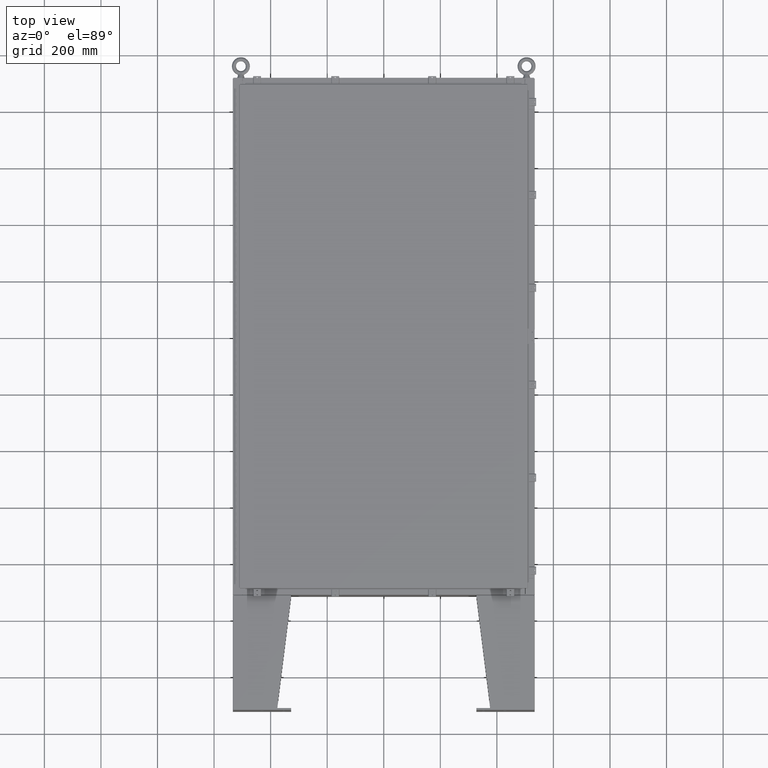
[diagram: clean part render]
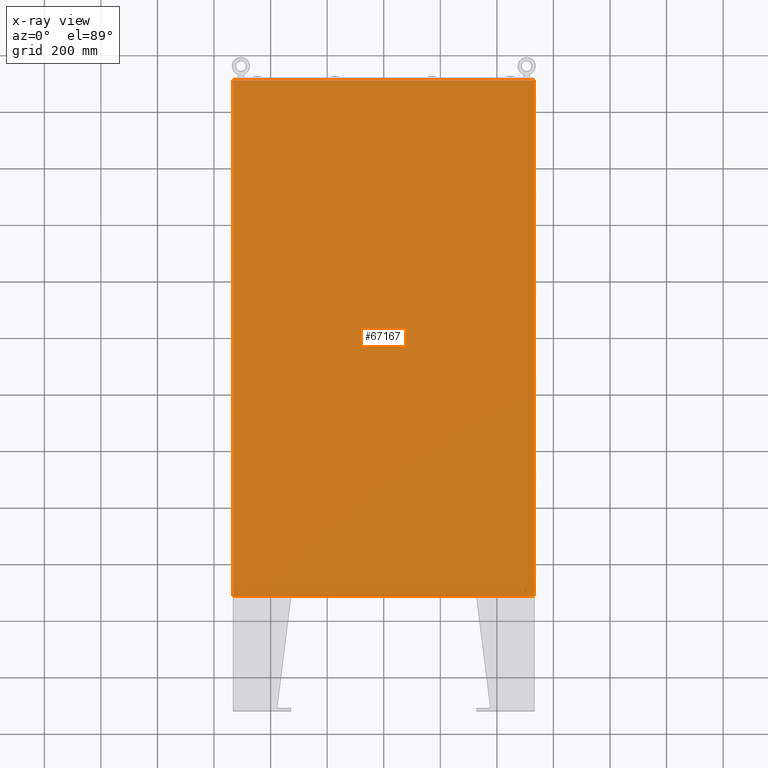
[diagram: x-ray — body ghosted, one internal face saturated and labeled with its STEP entity id]
A machine part, top view, then the same camera in x-ray: the body is ghosted and one INTERNAL B-rep face — a face not visible from any outside direction — is saturated and labeled: STEP entity #67167.
In plain terms, the highlighted planar face has unit normal (0, 0, -1).
Its self-contained STEP definition (entity closure, byte-faithful):
#1101 = CARTESIAN_POINT ( 'NONE',  ( -20.99999999999999600, 35.92530000000000000, 0.0000000000000000000 ) ) ;
#2637 = CARTESIAN_POINT ( 'NONE',  ( -20.91230000000000500, 35.92530000000000000, 4.481938114605432000E-017 ) ) ;
#3471 = EDGE_CURVE ( 'NONE', #21895, #34831, #41214, .T. ) ;
#3842 = ORIENTED_EDGE ( 'NONE', *, *, #48455, .T. ) ;
#11097 = VECTOR ( 'NONE', #16268, 39.37007874015748100 ) ;
#12959 = LINE ( 'NONE', #27878, #11097 ) ;
#15067 = VECTOR ( 'NONE', #49928, 39.37007874015748100 ) ;
#16268 = DIRECTION ( 'NONE',  ( 1.000000000000000000, 0.0000000000000000000, 0.0000000000000000000 ) ) ;
#17662 = CARTESIAN_POINT ( 'NONE',  ( 20.91230000000000900, -35.92529999999999300, 4.481938114605432000E-017 ) ) ;
#19462 = DIRECTION ( 'NONE',  ( -1.000000000000000000, 0.0000000000000000000, -0.0000000000000000000 ) ) ;
#20019 = VECTOR ( 'NONE', #58464, 39.37007874015748100 ) ;
#20577 = CARTESIAN_POINT ( 'NONE',  ( -20.91230000000000500, -35.92530000000000000, 4.481938114605432000E-017 ) ) ;
#21895 = VERTEX_POINT ( 'NONE', #35092 ) ;
#24634 = EDGE_LOOP ( 'NONE', ( #64669, #3842, #59080, #63631 ) ) ;
#27878 = CARTESIAN_POINT ( 'NONE',  ( -21.00000000000000000, -35.92529999999999300, 0.0000000000000000000 ) ) ;
#29147 = CARTESIAN_POINT ( 'NONE',  ( 20.91230000000000900, 35.92530000000000000, 4.481938114605432000E-017 ) ) ;
#31092 = CARTESIAN_POINT ( 'NONE',  ( 0.0000000000000000000, 0.0000000000000000000, 0.0000000000000000000 ) ) ;
#34831 = VERTEX_POINT ( 'NONE', #17662 ) ;
#35092 = CARTESIAN_POINT ( 'NONE',  ( 20.91230000000000900, 35.92530000000000000, 4.481938114605432000E-017 ) ) ;
#36620 = EDGE_CURVE ( 'NONE', #55965, #56299, #76104, .T. ) ;
#41214 = LINE ( 'NONE', #29147, #20019 ) ;
#45581 = AXIS2_PLACEMENT_3D ( 'NONE', #31092, #54639, #19462 ) ;
#48379 = DIRECTION ( 'NONE',  ( -1.000000000000000000, -0.0000000000000000000, -0.0000000000000000000 ) ) ;
#48455 = EDGE_CURVE ( 'NONE', #55965, #34831, #12959, .T. ) ;
#49928 = DIRECTION ( 'NONE',  ( -0.0000000000000000000, 1.000000000000000000, -0.0000000000000000000 ) ) ;
#52932 = CARTESIAN_POINT ( 'NONE',  ( -20.91230000000000500, -35.92530000000000000, 4.481938114605432000E-017 ) ) ;
#54310 = LINE ( 'NONE', #1101, #68268 ) ;
#54375 = PLANE ( 'NONE',  #45581 ) ;
#54639 = DIRECTION ( 'NONE',  ( 0.0000000000000000000, 0.0000000000000000000, -1.000000000000000000 ) ) ;
#55965 = VERTEX_POINT ( 'NONE', #52932 ) ;
#56299 = VERTEX_POINT ( 'NONE', #2637 ) ;
#58464 = DIRECTION ( 'NONE',  ( -0.0000000000000000000, -1.000000000000000000, -0.0000000000000000000 ) ) ;
#59080 = ORIENTED_EDGE ( 'NONE', *, *, #3471, .F. ) ;
#63631 = ORIENTED_EDGE ( 'NONE', *, *, #64198, .T. ) ;
#64198 = EDGE_CURVE ( 'NONE', #21895, #56299, #54310, .T. ) ;
#64654 = FACE_OUTER_BOUND ( 'NONE', #24634, .T. ) ;
#64669 = ORIENTED_EDGE ( 'NONE', *, *, #36620, .F. ) ;
#67167 = ADVANCED_FACE ( 'NONE', ( #64654 ), #54375, .F. ) ;
#68268 = VECTOR ( 'NONE', #48379, 39.37007874015748100 ) ;
#76104 = LINE ( 'NONE', #20577, #15067 ) ;